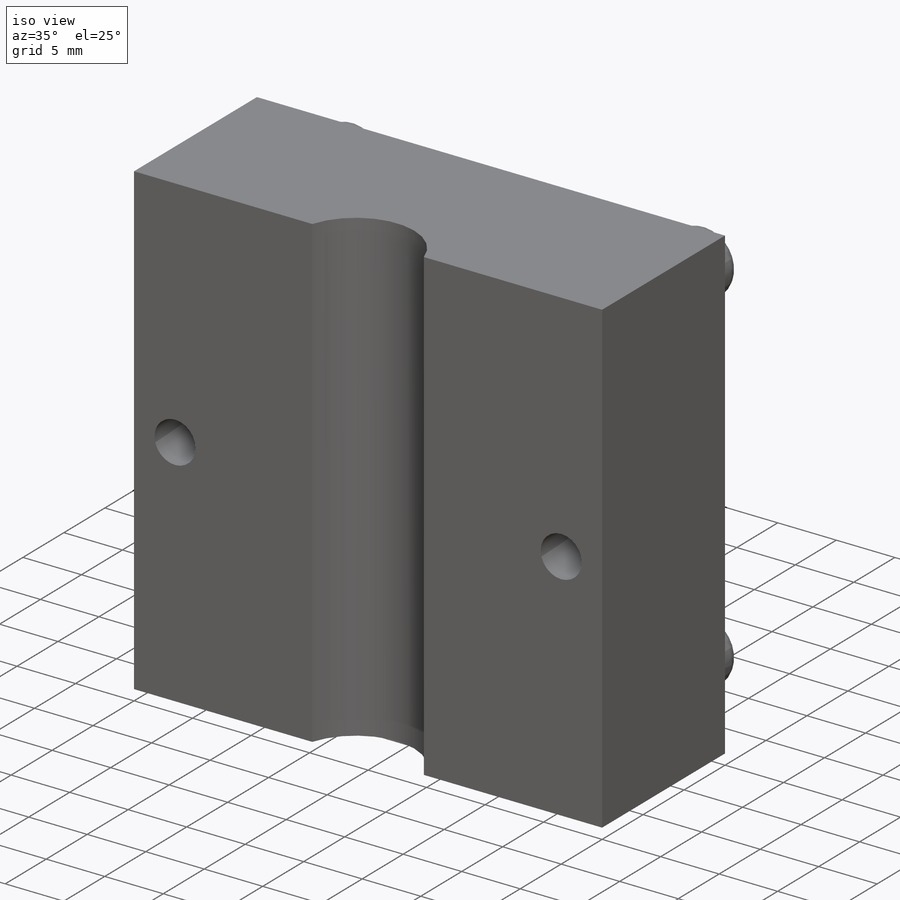
[diagram: iso view]
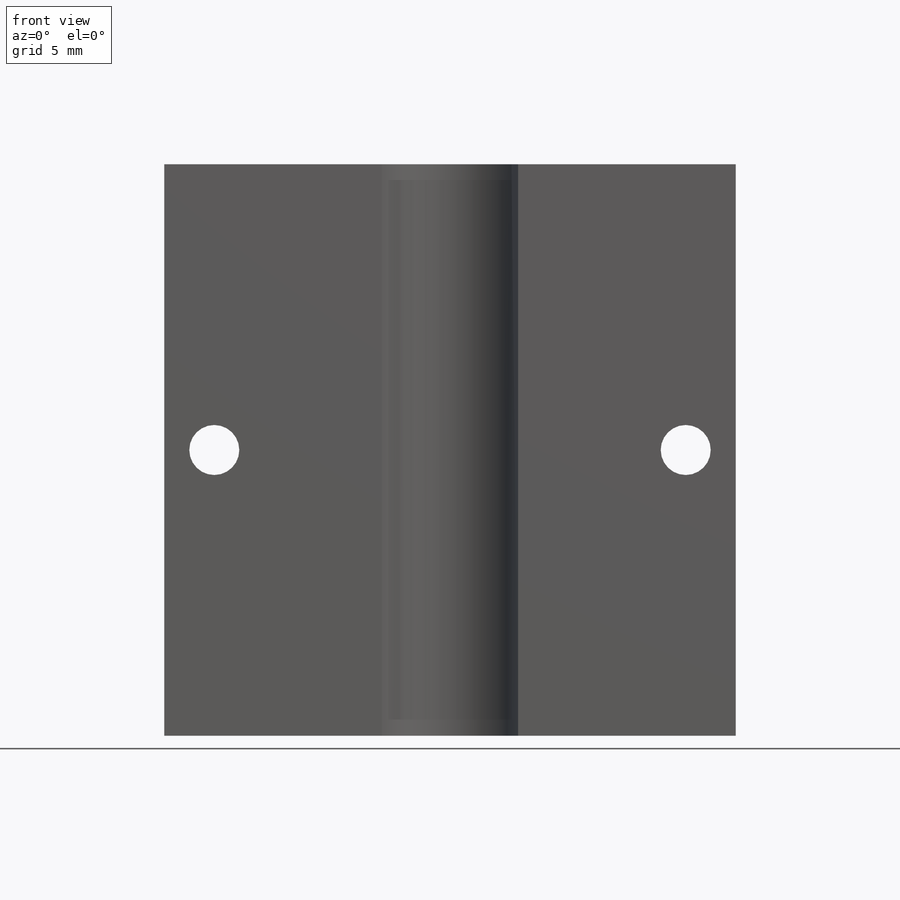
[diagram: front view]
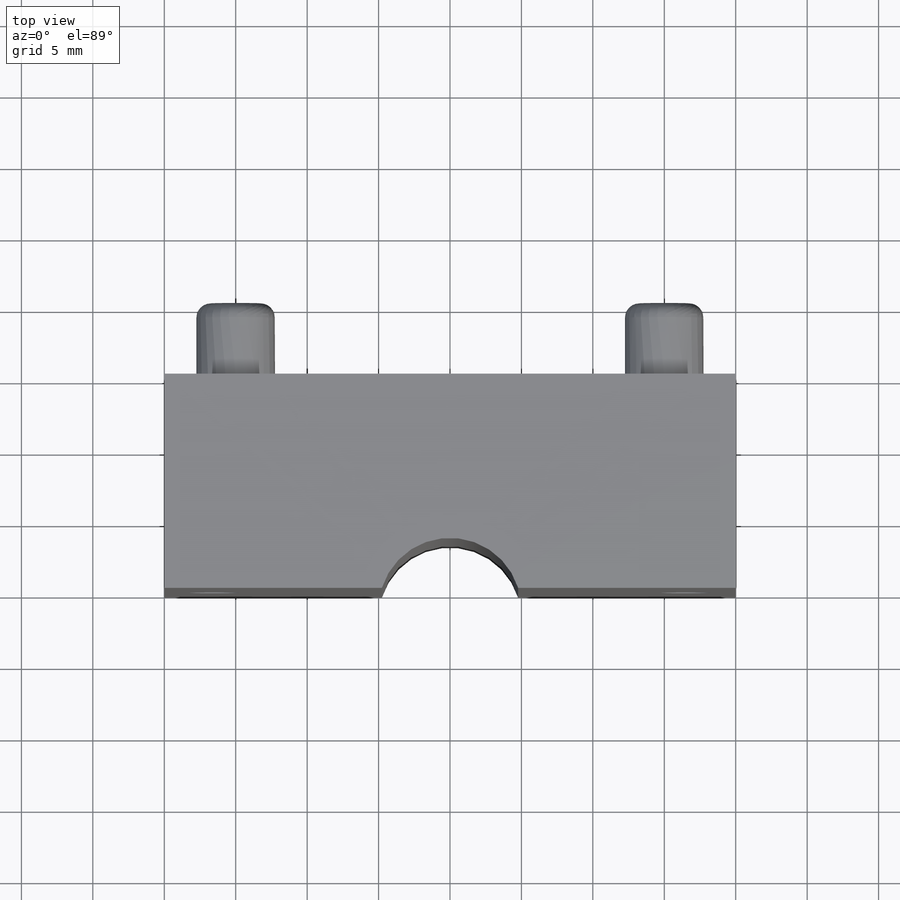
[diagram: top view]
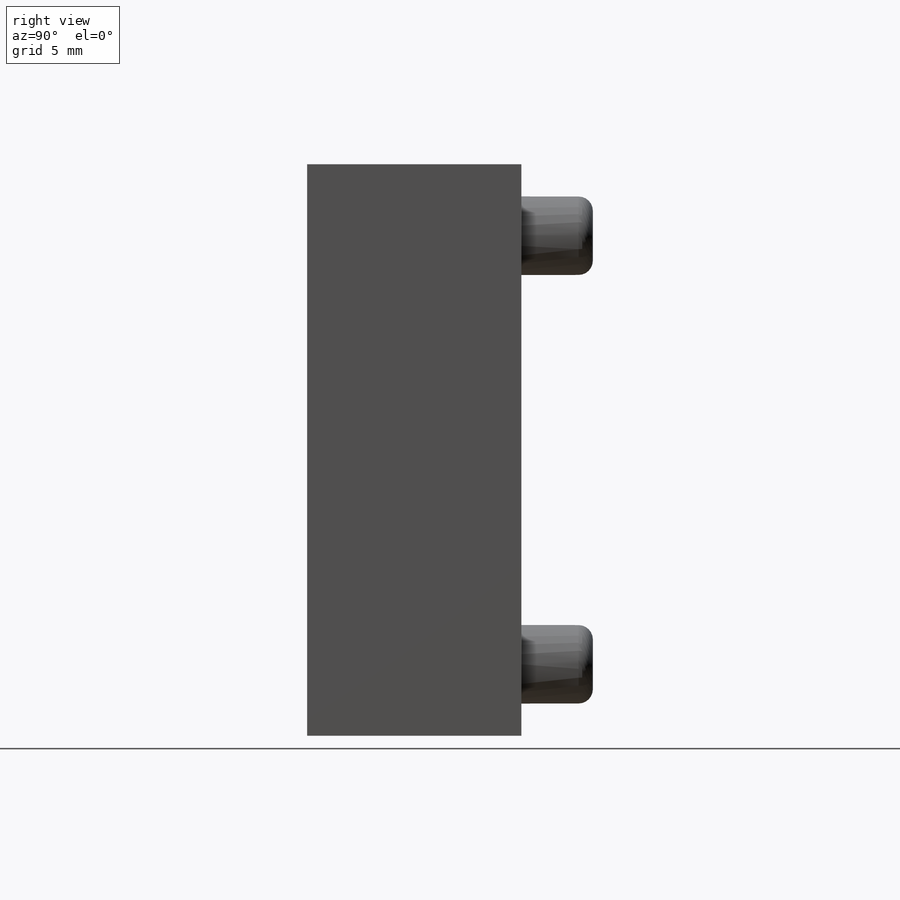
[diagram: right view]
SOLIDWORKS PART (.sldprt)
format: sldprt  version: not decoded by parser v0  size: 231,424 bytes
history: native  units: mm
features: sketch x6, cut_extrude x4, extrude x2, material x1, fillet x1 (+13 scaffold rows collapsed)
feature tree (27):
  scaffold x13  (default folders/planes/origin — collapsed)
  material  "Material <not specified>"
  sketch  "Sketch1"  dims[D1=40.0mm D2=40.0mm]
  extrude  "Boss-Extrude1"  Depth=15mm
  sketch  "Sketch3"  dims[D1=5.5mm D2=5.5mm D3=5.5mm D4=5.5mm D5=5.0mm D6=5.0mm D7=5.0mm D8=5.0mm D9=5.0mm D10=5.0mm D11=5.0mm D12=5.0mm]
  extrude  "Boss-Extrude2"  Depth=5mm
  fillet  "Fillet1"  Radius=1mm
  sketch  "Sketch4"  dims[D1=25.0mm]
  cut_extrude  "Cut-Extrude1"  Depth=3.5mm
  sketch  "Sketch5"  dims[D1=10.0mm D2=1.5mm]
  cut_extrude  "Cut-Extrude2"  [1 undecoded]
  sketch  "Sketch6"  dims[c1.D1=6.0mm c1.D2=6.0mm c1.D3=3.5mm c1.D4=3.5mm c1.D5=~20.303941mm c2.D5=90.0deg c3.D5=20.0mm c3.D6=20.0mm]
  cut_extrude  "Cut-Extrude3"  Depth=2mm
  sketch  "Sketch7"  dims[D1=3.5mm D2=3.5mm]
  cut_extrude  "Cut-Extrude4"  [1 undecoded]
decode coverage: 11 of 13 modeling features carry decoded parameters
note: ~ marks probable driven/reference dimensions
note: 2 parameter values undecoded
note: suppression state not decoded; provenance and decode notes live in map.json
